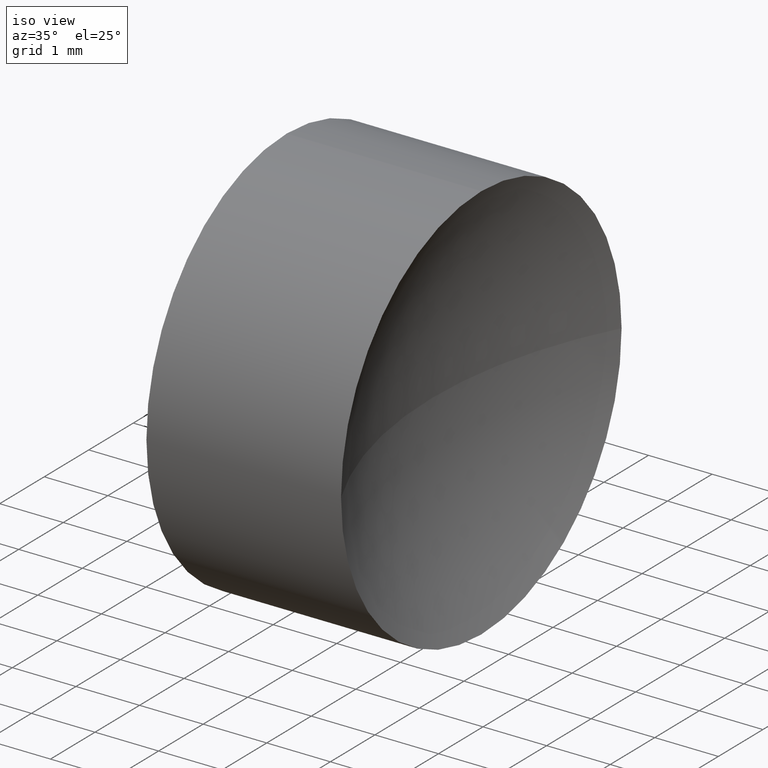
[diagram: clean part render]
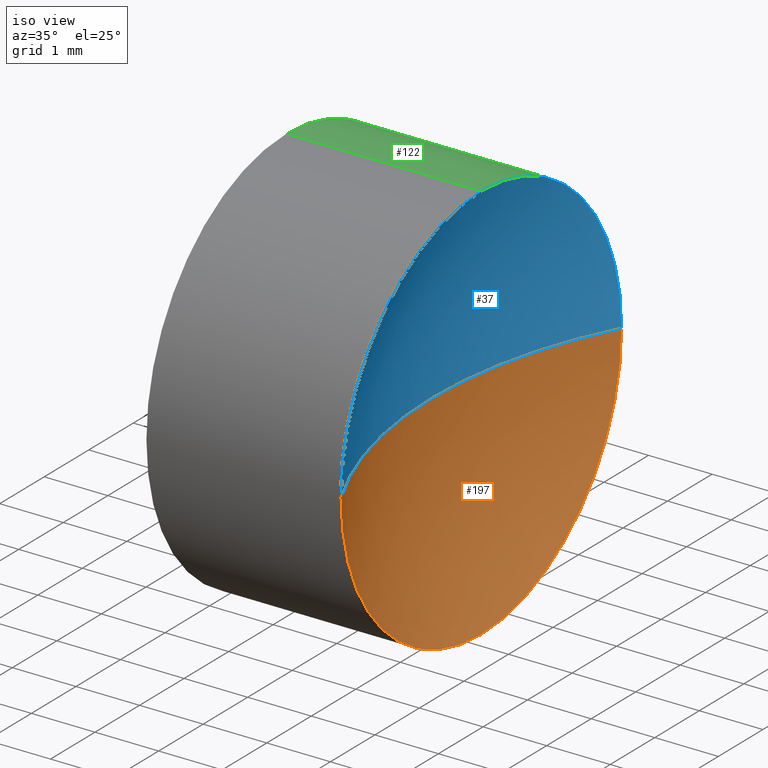
[diagram: same view with three faces highlighted in distinct colors, each labeled with its STEP entity id]
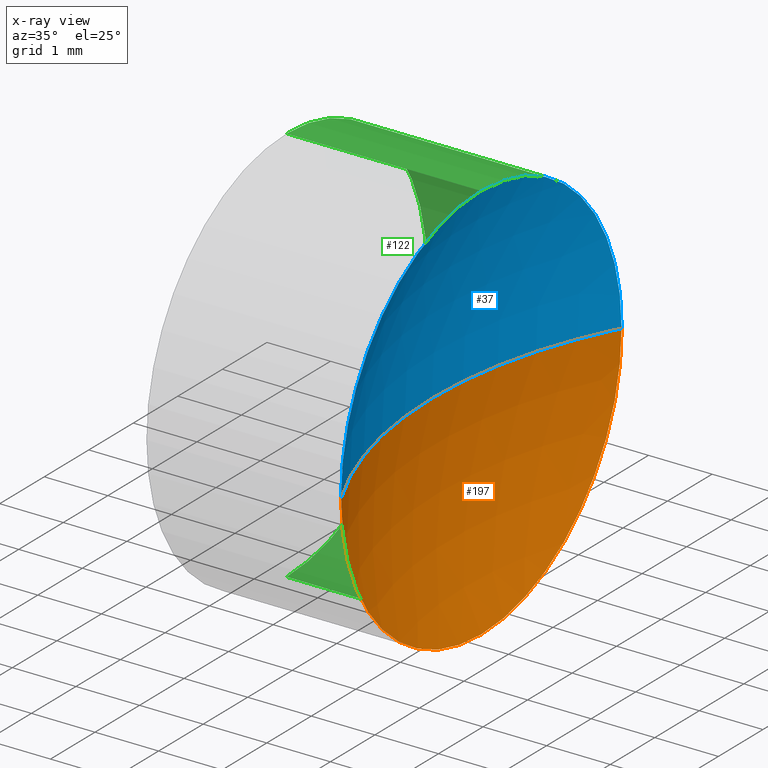
[diagram: x-ray of the same camera — body ghosted, the three highlighted faces saturated]
A machine part, iso view with three faces highlighted in distinct colors.
The next image is the same camera in x-ray (body ghosted, the three faces saturated) — at least one of them is partly hidden behind the body in this view.
Their STEP definitions:

[orange] entity #197 — the highlighted spherical surface has radius 6.75 mm.
#3 = CARTESIAN_POINT ( 'NONE',  ( 31.51185287174618200, 13.04452057459747700, 0.0000000000000000000 ) ) ;
#10 = CARTESIAN_POINT ( 'NONE',  ( 24.76185287174618200, 13.04452057459747700, 0.0000000000000000000 ) ) ;
#11 = EDGE_CURVE ( 'NONE', #136, #87, #76, .T. ) ;
#18 = ORIENTED_EDGE ( 'NONE', *, *, #100, .F. ) ;
#23 = VERTEX_POINT ( 'NONE', #208 ) ;
#28 = DIRECTION ( 'NONE',  ( -1.000000000000000000, -0.0000000000000000000, -0.0000000000000000000 ) ) ;
#32 = DIRECTION ( 'NONE',  ( -1.000000000000000000, -0.0000000000000000000, -0.0000000000000000000 ) ) ;
#40 = CIRCLE ( 'NONE', #220, 6.749999999999999100 ) ;
#50 = ORIENTED_EDGE ( 'NONE', *, *, #115, .T. ) ;
#53 = DIRECTION ( 'NONE',  ( 0.0000000000000000000, 0.0000000000000000000, 1.000000000000000000 ) ) ;
#54 = CARTESIAN_POINT ( 'NONE',  ( 25.54192824910646200, 16.19452057459747600, 0.0000000000000000000 ) ) ;
#58 = DIRECTION ( 'NONE',  ( 0.0000000000000000000, 1.224646799147353200E-016, -1.000000000000000000 ) ) ;
#72 = DIRECTION ( 'NONE',  ( 0.0000000000000000000, 0.0000000000000000000, 1.000000000000000000 ) ) ;
#76 = CIRCLE ( 'NONE', #88, 6.749999999999999100 ) ;
#85 = CARTESIAN_POINT ( 'NONE',  ( 25.54192824910646200, 13.04452057459747900, 0.0000000000000000000 ) ) ;
#86 = DIRECTION ( 'NONE',  ( 0.0000000000000000000, 0.0000000000000000000, 1.000000000000000000 ) ) ;
#87 = VERTEX_POINT ( 'NONE', #10 ) ;
#88 = AXIS2_PLACEMENT_3D ( 'NONE', #3, #58, #109 ) ;
#93 = ORIENTED_EDGE ( 'NONE', *, *, #156, .F. ) ;
#100 = EDGE_CURVE ( 'NONE', #23, #136, #219, .T. ) ;
#109 = DIRECTION ( 'NONE',  ( 0.0000000000000000000, 1.000000000000000000, 1.224646799147353500E-016 ) ) ;
#115 = EDGE_CURVE ( 'NONE', #186, #87, #40, .T. ) ;
#119 = DIRECTION ( 'NONE',  ( 0.0000000000000000000, 1.000000000000000000, 0.0000000000000000000 ) ) ;
#135 = AXIS2_PLACEMENT_3D ( 'NONE', #85, #32, #53 ) ;
#136 = VERTEX_POINT ( 'NONE', #189 ) ;
#150 = CIRCLE ( 'NONE', #232, 3.150000000000001700 ) ;
#155 = CARTESIAN_POINT ( 'NONE',  ( 31.51185287174618200, 13.04452057459747700, 0.0000000000000000000 ) ) ;
#156 = EDGE_CURVE ( 'NONE', #186, #23, #150, .T. ) ;
#158 = EDGE_LOOP ( 'NONE', ( #164, #18, #93, #50 ) ) ;
#164 = ORIENTED_EDGE ( 'NONE', *, *, #11, .F. ) ;
#175 = CARTESIAN_POINT ( 'NONE',  ( 25.54192824910646200, 13.04452057459747900, 0.0000000000000000000 ) ) ;
#176 = CARTESIAN_POINT ( 'NONE',  ( 31.51185287174618200, 13.04452057459747700, 0.0000000000000000000 ) ) ;
#180 = SPHERICAL_SURFACE ( 'NONE', #191, 6.750000000000000000 ) ;
#186 = VERTEX_POINT ( 'NONE', #54 ) ;
#189 = CARTESIAN_POINT ( 'NONE',  ( 25.54192824910646200, 9.894520574597477100, -3.857637417314163700E-016 ) ) ;
#191 = AXIS2_PLACEMENT_3D ( 'NONE', #176, #222, #119 ) ;
#192 = DIRECTION ( 'NONE',  ( 1.000000000000000000, 0.0000000000000000000, 0.0000000000000000000 ) ) ;
#197 = ADVANCED_FACE ( 'NONE', ( #204 ), #180, .F. ) ;
#204 = FACE_OUTER_BOUND ( 'NONE', #158, .T. ) ;
#208 = CARTESIAN_POINT ( 'NONE',  ( 25.54192824910646200, 13.04452057459747900, -3.150000000000001700 ) ) ;
#219 = CIRCLE ( 'NONE', #135, 3.150000000000001700 ) ;
#220 = AXIS2_PLACEMENT_3D ( 'NONE', #155, #72, #192 ) ;
#222 = DIRECTION ( 'NONE',  ( 0.0000000000000000000, 0.0000000000000000000, -1.000000000000000000 ) ) ;
#232 = AXIS2_PLACEMENT_3D ( 'NONE', #175, #28, #86 ) ;

[blue] entity #37 — the highlighted spherical surface has radius 6.75 mm.
#3 = CARTESIAN_POINT ( 'NONE',  ( 31.51185287174618200, 13.04452057459747700, 0.0000000000000000000 ) ) ;
#9 = VERTEX_POINT ( 'NONE', #139 ) ;
#10 = CARTESIAN_POINT ( 'NONE',  ( 24.76185287174618200, 13.04452057459747700, 0.0000000000000000000 ) ) ;
#11 = EDGE_CURVE ( 'NONE', #136, #87, #76, .T. ) ;
#29 = ORIENTED_EDGE ( 'NONE', *, *, #71, .F. ) ;
#35 = DIRECTION ( 'NONE',  ( 0.0000000000000000000, 0.0000000000000000000, -1.000000000000000000 ) ) ;
#37 = ADVANCED_FACE ( 'NONE', ( #210 ), #205, .F. ) ;
#40 = CIRCLE ( 'NONE', #220, 6.749999999999999100 ) ;
#54 = CARTESIAN_POINT ( 'NONE',  ( 25.54192824910646200, 16.19452057459747600, 0.0000000000000000000 ) ) ;
#58 = DIRECTION ( 'NONE',  ( 0.0000000000000000000, 1.224646799147353200E-016, -1.000000000000000000 ) ) ;
#66 = ORIENTED_EDGE ( 'NONE', *, *, #11, .T. ) ;
#67 = EDGE_LOOP ( 'NONE', ( #137, #66, #141, #29 ) ) ;
#71 = EDGE_CURVE ( 'NONE', #9, #186, #114, .T. ) ;
#72 = DIRECTION ( 'NONE',  ( 0.0000000000000000000, 0.0000000000000000000, 1.000000000000000000 ) ) ;
#75 = DIRECTION ( 'NONE',  ( 0.0000000000000000000, 1.000000000000000000, 0.0000000000000000000 ) ) ;
#76 = CIRCLE ( 'NONE', #88, 6.749999999999999100 ) ;
#87 = VERTEX_POINT ( 'NONE', #10 ) ;
#88 = AXIS2_PLACEMENT_3D ( 'NONE', #3, #58, #109 ) ;
#89 = CARTESIAN_POINT ( 'NONE',  ( 31.51185287174618200, 13.04452057459747700, 0.0000000000000000000 ) ) ;
#95 = EDGE_CURVE ( 'NONE', #136, #9, #149, .T. ) ;
#104 = DIRECTION ( 'NONE',  ( 0.0000000000000000000, 0.0000000000000000000, 1.000000000000000000 ) ) ;
#107 = CARTESIAN_POINT ( 'NONE',  ( 25.54192824910646200, 13.04452057459747900, 0.0000000000000000000 ) ) ;
#109 = DIRECTION ( 'NONE',  ( 0.0000000000000000000, 1.000000000000000000, 1.224646799147353500E-016 ) ) ;
#113 = AXIS2_PLACEMENT_3D ( 'NONE', #225, #138, #121 ) ;
#114 = CIRCLE ( 'NONE', #207, 3.150000000000001700 ) ;
#115 = EDGE_CURVE ( 'NONE', #186, #87, #40, .T. ) ;
#121 = DIRECTION ( 'NONE',  ( 0.0000000000000000000, 0.0000000000000000000, 1.000000000000000000 ) ) ;
#125 = AXIS2_PLACEMENT_3D ( 'NONE', #89, #35, #75 ) ;
#136 = VERTEX_POINT ( 'NONE', #189 ) ;
#137 = ORIENTED_EDGE ( 'NONE', *, *, #95, .F. ) ;
#138 = DIRECTION ( 'NONE',  ( -1.000000000000000000, -0.0000000000000000000, -0.0000000000000000000 ) ) ;
#139 = CARTESIAN_POINT ( 'NONE',  ( 25.54192824910646200, 13.04452057459747900, 3.150000000000001700 ) ) ;
#141 = ORIENTED_EDGE ( 'NONE', *, *, #115, .F. ) ;
#149 = CIRCLE ( 'NONE', #113, 3.150000000000001700 ) ;
#155 = CARTESIAN_POINT ( 'NONE',  ( 31.51185287174618200, 13.04452057459747700, 0.0000000000000000000 ) ) ;
#186 = VERTEX_POINT ( 'NONE', #54 ) ;
#189 = CARTESIAN_POINT ( 'NONE',  ( 25.54192824910646200, 9.894520574597477100, -3.857637417314163700E-016 ) ) ;
#190 = DIRECTION ( 'NONE',  ( -1.000000000000000000, -0.0000000000000000000, -0.0000000000000000000 ) ) ;
#192 = DIRECTION ( 'NONE',  ( 1.000000000000000000, 0.0000000000000000000, 0.0000000000000000000 ) ) ;
#205 = SPHERICAL_SURFACE ( 'NONE', #125, 6.750000000000000000 ) ;
#207 = AXIS2_PLACEMENT_3D ( 'NONE', #107, #190, #104 ) ;
#210 = FACE_OUTER_BOUND ( 'NONE', #67, .T. ) ;
#220 = AXIS2_PLACEMENT_3D ( 'NONE', #155, #72, #192 ) ;
#225 = CARTESIAN_POINT ( 'NONE',  ( 25.54192824910646200, 13.04452057459747900, 0.0000000000000000000 ) ) ;

[green] entity #122 — the highlighted cylindrical surface (partial cylindrical patch) has radius 3.15 mm, axis along (-1, -0, -0).
#2 = ORIENTED_EDGE ( 'NONE', *, *, #81, .T. ) ;
#8 = DIRECTION ( 'NONE',  ( -1.000000000000000000, -0.0000000000000000000, -0.0000000000000000000 ) ) ;
#9 = VERTEX_POINT ( 'NONE', #139 ) ;
#23 = VERTEX_POINT ( 'NONE', #208 ) ;
#25 = ORIENTED_EDGE ( 'NONE', *, *, #201, .F. ) ;
#27 = CARTESIAN_POINT ( 'NONE',  ( 22.48177749438590200, 13.04452057459747900, 3.150000000000001700 ) ) ;
#28 = DIRECTION ( 'NONE',  ( -1.000000000000000000, -0.0000000000000000000, -0.0000000000000000000 ) ) ;
#33 = CARTESIAN_POINT ( 'NONE',  ( 21.22493055706841100, 13.04452057459747900, 0.0000000000000000000 ) ) ;
#46 = VERTEX_POINT ( 'NONE', #178 ) ;
#48 = VERTEX_POINT ( 'NONE', #27 ) ;
#54 = CARTESIAN_POINT ( 'NONE',  ( 25.54192824910646200, 16.19452057459747600, 0.0000000000000000000 ) ) ;
#55 = CARTESIAN_POINT ( 'NONE',  ( 21.22493055706841100, 13.04452057459747900, 3.150000000000001700 ) ) ;
#57 = AXIS2_PLACEMENT_3D ( 'NONE', #228, #127, #182 ) ;
#70 = CARTESIAN_POINT ( 'NONE',  ( 22.48177749438590200, 13.04452057459747900, -3.150000000000001700 ) ) ;
#71 = EDGE_CURVE ( 'NONE', #9, #186, #114, .T. ) ;
#79 = AXIS2_PLACEMENT_3D ( 'NONE', #211, #185, #80 ) ;
#80 = DIRECTION ( 'NONE',  ( 0.0000000000000000000, 0.0000000000000000000, 1.000000000000000000 ) ) ;
#81 = EDGE_CURVE ( 'NONE', #23, #128, #163, .T. ) ;
#82 = EDGE_CURVE ( 'NONE', #9, #48, #170, .T. ) ;
#84 = VECTOR ( 'NONE', #8, 1000.000000000000000 ) ;
#86 = DIRECTION ( 'NONE',  ( 0.0000000000000000000, 0.0000000000000000000, 1.000000000000000000 ) ) ;
#104 = DIRECTION ( 'NONE',  ( 0.0000000000000000000, 0.0000000000000000000, 1.000000000000000000 ) ) ;
#107 = CARTESIAN_POINT ( 'NONE',  ( 25.54192824910646200, 13.04452057459747900, 0.0000000000000000000 ) ) ;
#108 = CARTESIAN_POINT ( 'NONE',  ( 21.22493055706841100, 13.04452057459747900, -3.150000000000001700 ) ) ;
#110 = CYLINDRICAL_SURFACE ( 'NONE', #223, 3.150000000000001700 ) ;
#114 = CIRCLE ( 'NONE', #207, 3.150000000000001700 ) ;
#116 = ORIENTED_EDGE ( 'NONE', *, *, #82, .F. ) ;
#120 = ORIENTED_EDGE ( 'NONE', *, *, #156, .T. ) ;
#122 = ADVANCED_FACE ( 'NONE', ( #132 ), #110, .T. ) ;
#127 = DIRECTION ( 'NONE',  ( -1.000000000000000000, -0.0000000000000000000, -0.0000000000000000000 ) ) ;
#128 = VERTEX_POINT ( 'NONE', #70 ) ;
#131 = ORIENTED_EDGE ( 'NONE', *, *, #71, .T. ) ;
#132 = FACE_OUTER_BOUND ( 'NONE', #146, .T. ) ;
#139 = CARTESIAN_POINT ( 'NONE',  ( 25.54192824910646200, 13.04452057459747900, 3.150000000000001700 ) ) ;
#146 = EDGE_LOOP ( 'NONE', ( #120, #2, #25, #193, #116, #131 ) ) ;
#150 = CIRCLE ( 'NONE', #232, 3.150000000000001700 ) ;
#152 = CIRCLE ( 'NONE', #79, 3.150000000000001700 ) ;
#156 = EDGE_CURVE ( 'NONE', #186, #23, #150, .T. ) ;
#159 = DIRECTION ( 'NONE',  ( -1.000000000000000000, -0.0000000000000000000, -0.0000000000000000000 ) ) ;
#163 = LINE ( 'NONE', #108, #183 ) ;
#170 = LINE ( 'NONE', #55, #84 ) ;
#175 = CARTESIAN_POINT ( 'NONE',  ( 25.54192824910646200, 13.04452057459747900, 0.0000000000000000000 ) ) ;
#178 = CARTESIAN_POINT ( 'NONE',  ( 22.48177749438590200, 16.19452057459748000, 0.0000000000000000000 ) ) ;
#182 = DIRECTION ( 'NONE',  ( 0.0000000000000000000, 0.0000000000000000000, 1.000000000000000000 ) ) ;
#183 = VECTOR ( 'NONE', #159, 1000.000000000000000 ) ;
#185 = DIRECTION ( 'NONE',  ( -1.000000000000000000, -0.0000000000000000000, -0.0000000000000000000 ) ) ;
#186 = VERTEX_POINT ( 'NONE', #54 ) ;
#190 = DIRECTION ( 'NONE',  ( -1.000000000000000000, -0.0000000000000000000, -0.0000000000000000000 ) ) ;
#193 = ORIENTED_EDGE ( 'NONE', *, *, #217, .F. ) ;
#196 = DIRECTION ( 'NONE',  ( -1.000000000000000000, -0.0000000000000000000, -0.0000000000000000000 ) ) ;
#201 = EDGE_CURVE ( 'NONE', #46, #128, #224, .T. ) ;
#207 = AXIS2_PLACEMENT_3D ( 'NONE', #107, #190, #104 ) ;
#208 = CARTESIAN_POINT ( 'NONE',  ( 25.54192824910646200, 13.04452057459747900, -3.150000000000001700 ) ) ;
#211 = CARTESIAN_POINT ( 'NONE',  ( 22.48177749438590200, 13.04452057459747900, 0.0000000000000000000 ) ) ;
#217 = EDGE_CURVE ( 'NONE', #48, #46, #152, .T. ) ;
#223 = AXIS2_PLACEMENT_3D ( 'NONE', #33, #196, #226 ) ;
#224 = CIRCLE ( 'NONE', #57, 3.150000000000001700 ) ;
#226 = DIRECTION ( 'NONE',  ( 0.0000000000000000000, 0.0000000000000000000, 1.000000000000000000 ) ) ;
#228 = CARTESIAN_POINT ( 'NONE',  ( 22.48177749438590200, 13.04452057459747900, 0.0000000000000000000 ) ) ;
#232 = AXIS2_PLACEMENT_3D ( 'NONE', #175, #28, #86 ) ;